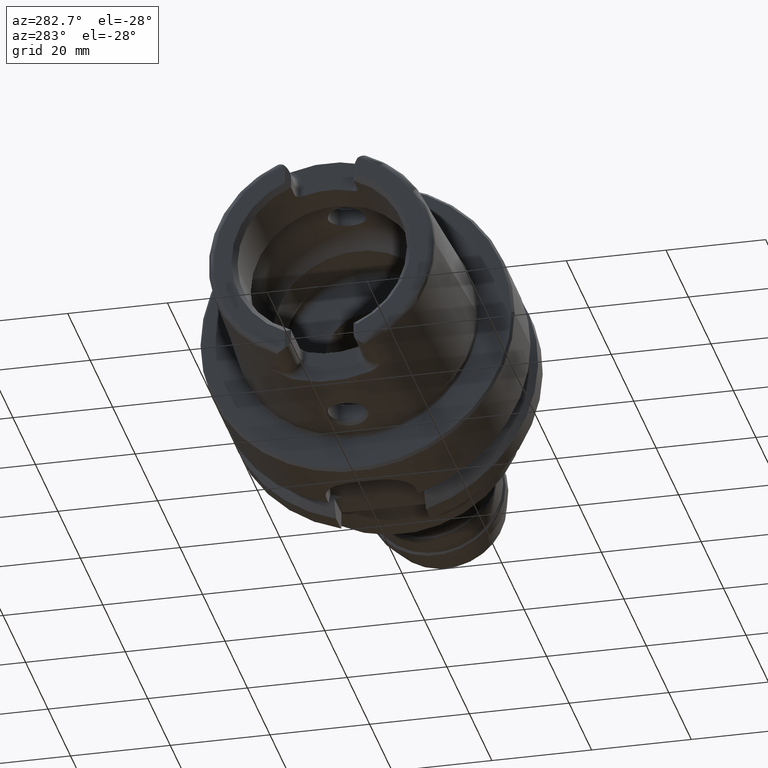
[diagram: clean part render]
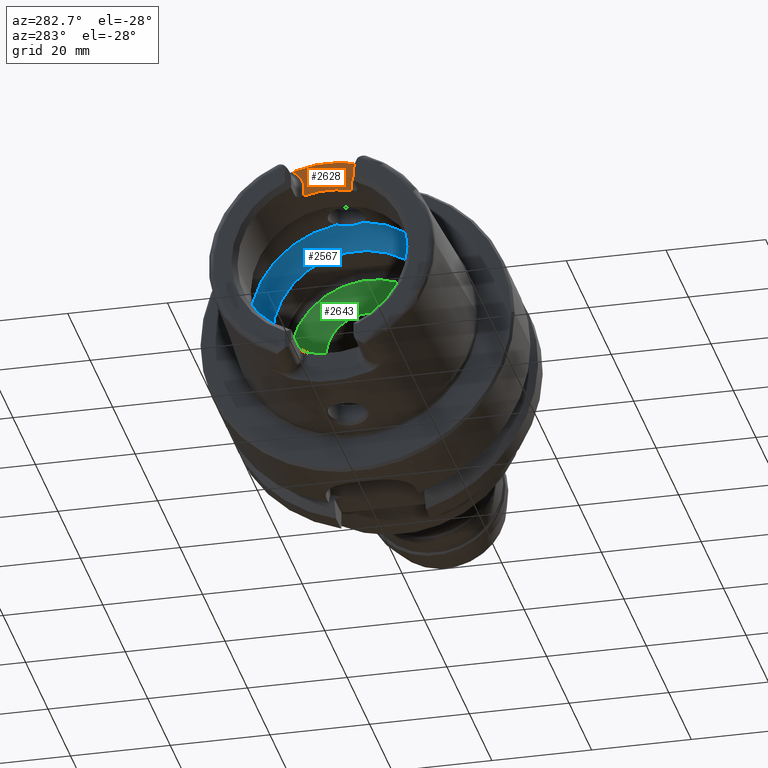
[diagram: same view with three faces highlighted in distinct colors, each labeled with its STEP entity id]
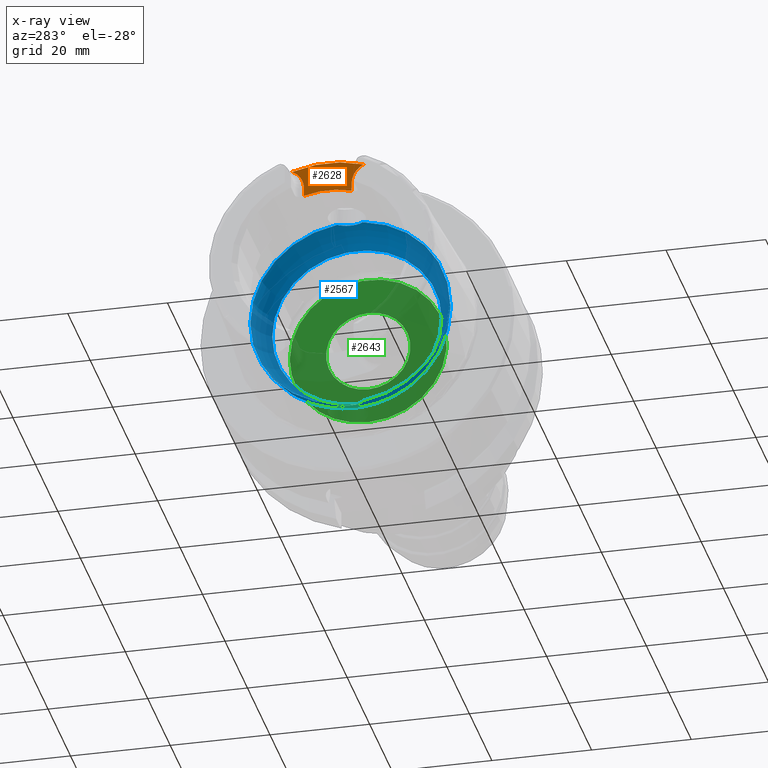
[diagram: x-ray of the same camera — body ghosted, the three highlighted faces saturated]
A machine part, auxiliary view with three faces highlighted in distinct colors.
The next image is the same camera in x-ray (body ghosted, the three faces saturated) — at least one of them is partly hidden behind the body in this view.
Their STEP definitions:

[orange] entity #2628 — the highlighted planar face has unit normal (-1, 0, 0).
#144=PLANE('',#2967);
#284=LINE('',#5339,#399);
#285=LINE('',#5368,#400);
#399=VECTOR('',#3664,10.);
#400=VECTOR('',#3677,10.);
#547=FACE_OUTER_BOUND('',#689,.T.);
#689=EDGE_LOOP('',(#2330,#2331,#2332,#2333,#2334,#2335));
#837=CIRCLE('',#2843,23.0180260521042);
#884=CIRCLE('',#2940,4.38);
#886=CIRCLE('',#2943,4.38);
#898=CIRCLE('',#2968,17.);
#1087=VERTEX_POINT('',#4524);
#1088=VERTEX_POINT('',#4539);
#1185=VERTEX_POINT('',#5336);
#1186=VERTEX_POINT('',#5338);
#1187=VERTEX_POINT('',#5353);
#1188=VERTEX_POINT('',#5357);
#1419=EDGE_CURVE('',#1087,#1088,#837,.T.);
#1569=EDGE_CURVE('',#1185,#1186,#284,.T.);
#1571=EDGE_CURVE('',#1088,#1185,#884,.T.);
#1573=EDGE_CURVE('',#1187,#1087,#886,.T.);
#1575=EDGE_CURVE('',#1188,#1187,#285,.T.);
#1596=EDGE_CURVE('',#1186,#1188,#898,.T.);
#2330=ORIENTED_EDGE('',*,*,#1571,.F.);
#2331=ORIENTED_EDGE('',*,*,#1419,.F.);
#2332=ORIENTED_EDGE('',*,*,#1573,.F.);
#2333=ORIENTED_EDGE('',*,*,#1575,.F.);
#2334=ORIENTED_EDGE('',*,*,#1596,.F.);
#2335=ORIENTED_EDGE('',*,*,#1569,.F.);
#2628=ADVANCED_FACE('',(#547),#144,.T.);
#2843=AXIS2_PLACEMENT_3D('',#4540,#3419,#3420);
#2940=AXIS2_PLACEMENT_3D('',#5351,#3667,#3668);
#2943=AXIS2_PLACEMENT_3D('',#5355,#3673,#3674);
#2967=AXIS2_PLACEMENT_3D('',#5426,#3729,#3730);
#2968=AXIS2_PLACEMENT_3D('',#5427,#3731,#3732);
#3419=DIRECTION('center_axis',(1.,0.,0.));
#3420=DIRECTION('ref_axis',(0.,1.,0.));
#3664=DIRECTION('',(0.,-1.58830189502884E-16,-1.));
#3667=DIRECTION('center_axis',(-1.,0.,0.));
#3668=DIRECTION('ref_axis',(0.,0.601141749549969,0.799142413433302));
#3673=DIRECTION('center_axis',(-1.,0.,0.));
#3674=DIRECTION('ref_axis',(0.,-0.601141749549969,0.799142413433301));
#3677=DIRECTION('',(0.,-1.58830189502884E-16,1.));
#3729=DIRECTION('center_axis',(-1.,0.,0.));
#3730=DIRECTION('ref_axis',(0.,0.,1.));
#3731=DIRECTION('center_axis',(-1.,0.,0.));
#3732=DIRECTION('ref_axis',(0.,1.,0.));
#4524=CARTESIAN_POINT('',(-26.,7.14127219004964,21.8822246319466));
#4539=CARTESIAN_POINT('',(-26.,-7.14127219004964,21.8822246319466));
#4540=CARTESIAN_POINT('Origin',(-26.,0.,0.));
#5336=CARTESIAN_POINT('',(-26.,-4.77,17.99));
#5338=CARTESIAN_POINT('',(-26.,-4.77,16.3170800083839));
#5339=CARTESIAN_POINT('',(-26.,-4.77,14.75));
#5351=CARTESIAN_POINT('Origin',(-26.,-9.15,17.99));
#5353=CARTESIAN_POINT('',(-26.,4.77,17.99));
#5355=CARTESIAN_POINT('Origin',(-26.,9.15,17.99));
#5357=CARTESIAN_POINT('',(-26.,4.77,16.3170800083839));
#5368=CARTESIAN_POINT('',(-26.,4.77,18.245));
#5426=CARTESIAN_POINT('Origin',(-26.,-2.22044604925031E-15,18.5));
#5427=CARTESIAN_POINT('Origin',(-26.,0.,0.));

[blue] entity #2567 — the highlighted toroidal blend (fillet) surface has major radius 12 mm and minor (blend) radius 8 mm.
#34=B_SPLINE_CURVE_WITH_KNOTS('',3,(#4584,#4585,#4586,#4587,#4588,#4589,
#4590,#4591,#4592,#4593,#4594,#4595),.UNSPECIFIED.,.F.,.F.,(4,2,2,2,2,4),
(-0.576707489927137,-0.455716402860932,-0.365368737325079,-0.320549741072141,
-0.288976283252758,-0.288398128098713),.UNSPECIFIED.);
#36=B_SPLINE_CURVE_WITH_KNOTS('',3,(#4628,#4629,#4630,#4631,#4632,#4633,
#4634,#4635,#4636,#4637),.UNSPECIFIED.,.F.,.F.,(4,2,2,2,4),(-0.288398128098713,
-0.257600392372138,-0.213718373510558,-0.137948403428905,0.),
 .UNSPECIFIED.);
#40=B_SPLINE_CURVE_WITH_KNOTS('',3,(#4785,#4786,#4787,#4788,#4789,#4790,
#4791,#4792,#4793,#4794),.UNSPECIFIED.,.F.,.F.,(4,2,2,2,4),(-0.288398128098684,
-0.257600392372121,-0.213718373510554,-0.137948403428902,0.),
 .UNSPECIFIED.);
#41=B_SPLINE_CURVE_WITH_KNOTS('',3,(#4798,#4799,#4800,#4801,#4802,#4803,
#4804,#4805,#4806,#4807,#4808,#4809),.UNSPECIFIED.,.F.,.F.,(4,2,2,2,2,4),
(-0.57670748992712,-0.455716402860916,-0.365368737325059,-0.320549741072118,
-0.288976283252731,-0.288398128098684),.UNSPECIFIED.);
#486=FACE_OUTER_BOUND('',#627,.T.);
#627=EDGE_LOOP('',(#2000,#2001,#2002,#2003,#2004,#2005,#2006,#2007,#2008,
#2009,#2010,#2011));
#839=CIRCLE('',#2848,17.);
#840=CIRCLE('',#2849,17.);
#841=CIRCLE('',#2850,17.);
#842=CIRCLE('',#2851,8.);
#843=CIRCLE('',#2852,20.);
#844=CIRCLE('',#2853,20.);
#845=CIRCLE('',#2854,20.);
#1091=VERTEX_POINT('',#4581);
#1092=VERTEX_POINT('',#4583);
#1093=VERTEX_POINT('',#4596);
#1096=VERTEX_POINT('',#4751);
#1097=VERTEX_POINT('',#4752);
#1098=VERTEX_POINT('',#4784);
#1100=VERTEX_POINT('',#4811);
#1101=VERTEX_POINT('',#4812);
#1102=VERTEX_POINT('',#4814);
#1103=VERTEX_POINT('',#4818);
#1425=EDGE_CURVE('',#1092,#1091,#34,.T.);
#1427=EDGE_CURVE('',#1091,#1093,#36,.T.);
#1432=EDGE_CURVE('',#1098,#1096,#40,.T.);
#1435=EDGE_CURVE('',#1097,#1098,#41,.T.);
#1436=EDGE_CURVE('',#1100,#1101,#839,.T.);
#1437=EDGE_CURVE('',#1102,#1100,#840,.T.);
#1438=EDGE_CURVE('',#1101,#1102,#841,.T.);
#1439=EDGE_CURVE('',#1101,#1091,#842,.T.);
#1440=EDGE_CURVE('',#1093,#1103,#843,.T.);
#1441=EDGE_CURVE('',#1103,#1097,#844,.T.);
#1442=EDGE_CURVE('',#1096,#1092,#845,.T.);
#2000=ORIENTED_EDGE('',*,*,#1436,.F.);
#2001=ORIENTED_EDGE('',*,*,#1437,.F.);
#2002=ORIENTED_EDGE('',*,*,#1438,.F.);
#2003=ORIENTED_EDGE('',*,*,#1439,.T.);
#2004=ORIENTED_EDGE('',*,*,#1427,.T.);
#2005=ORIENTED_EDGE('',*,*,#1440,.T.);
#2006=ORIENTED_EDGE('',*,*,#1441,.T.);
#2007=ORIENTED_EDGE('',*,*,#1435,.T.);
#2008=ORIENTED_EDGE('',*,*,#1432,.T.);
#2009=ORIENTED_EDGE('',*,*,#1442,.T.);
#2010=ORIENTED_EDGE('',*,*,#1425,.T.);
#2011=ORIENTED_EDGE('',*,*,#1439,.F.);
#2496=TOROIDAL_SURFACE('',#2847,12.,8.);
#2567=ADVANCED_FACE('',(#486),#2496,.F.);
#2847=AXIS2_PLACEMENT_3D('',#4810,#3432,#3433);
#2848=AXIS2_PLACEMENT_3D('',#4813,#3434,#3435);
#2849=AXIS2_PLACEMENT_3D('',#4815,#3436,#3437);
#2850=AXIS2_PLACEMENT_3D('',#4816,#3438,#3439);
#2851=AXIS2_PLACEMENT_3D('',#4817,#3440,#3441);
#2852=AXIS2_PLACEMENT_3D('',#4819,#3442,#3443);
#2853=AXIS2_PLACEMENT_3D('',#4820,#3444,#3445);
#2854=AXIS2_PLACEMENT_3D('',#4821,#3446,#3447);
#3432=DIRECTION('center_axis',(-1.,0.,0.));
#3433=DIRECTION('ref_axis',(0.,0.,1.));
#3434=DIRECTION('center_axis',(-1.,0.,0.));
#3435=DIRECTION('ref_axis',(0.,0.,1.));
#3436=DIRECTION('center_axis',(-1.,0.,0.));
#3437=DIRECTION('ref_axis',(0.,0.,1.));
#3438=DIRECTION('center_axis',(-1.,0.,0.));
#3439=DIRECTION('ref_axis',(0.,0.,1.));
#3440=DIRECTION('center_axis',(0.,1.,-1.22464679914735E-16));
#3441=DIRECTION('ref_axis',(0.,-1.22464679914735E-16,-1.));
#3442=DIRECTION('center_axis',(-1.,0.,0.));
#3443=DIRECTION('ref_axis',(0.,0.,1.));
#3444=DIRECTION('center_axis',(-1.,0.,0.));
#3445=DIRECTION('ref_axis',(0.,0.,1.));
#3446=DIRECTION('center_axis',(-1.,0.,0.));
#3447=DIRECTION('ref_axis',(0.,0.,1.));
#4581=CARTESIAN_POINT('',(-5.25,-3.2549023747245E-16,-19.9307944116589));
#4583=CARTESIAN_POINT('',(-6.3,2.60240273593461,-19.8299646999182));
#4584=CARTESIAN_POINT('Ctrl Pts',(-6.3,2.60240273593462,-19.8299646999182));
#4585=CARTESIAN_POINT('Ctrl Pts',(-6.02135700807983,2.31330986502881,-19.8679040553113));
#4586=CARTESIAN_POINT('Ctrl Pts',(-5.79033009489734,1.98064918550538,-19.890591169119));
#4587=CARTESIAN_POINT('Ctrl Pts',(-5.4867559347239,1.34543685595402,-19.9160762142355));
#4588=CARTESIAN_POINT('Ctrl Pts',(-5.39007954405641,1.05909527261747,-19.9223713998338));
#4589=CARTESIAN_POINT('Ctrl Pts',(-5.29825184053117,0.617966692523932,-19.9280498303184));
#4590=CARTESIAN_POINT('Ctrl Pts',(-5.27657003878054,0.469994704559193,-19.9292919985393));
#4591=CARTESIAN_POINT('Ctrl Pts',(-5.25476109400056,0.216252544174992,-19.9305312191434));
#4592=CARTESIAN_POINT('Ctrl Pts',(-5.25016676806113,0.111043433894874,-19.9307851133249));
#4593=CARTESIAN_POINT('Ctrl Pts',(-5.25000148602981,0.00385492015310348,
-19.9307943288045));
#4594=CARTESIAN_POINT('Ctrl Pts',(-5.25,0.00192745284672582,-19.9307944116589));
#4595=CARTESIAN_POINT('Ctrl Pts',(-5.25,-1.11353179044883E-15,-19.9307944116589));
#4596=CARTESIAN_POINT('',(-6.3,-2.60240273593461,-19.8299646999182));
#4628=CARTESIAN_POINT('Ctrl Pts',(-5.25,-1.07552855510562E-15,-19.9307944116589));
#4629=CARTESIAN_POINT('Ctrl Pts',(-5.25,-0.102673448439582,-19.9307944116589));
#4630=CARTESIAN_POINT('Ctrl Pts',(-5.25421684930312,-0.205305866402777,
-19.9305613545514));
#4631=CARTESIAN_POINT('Ctrl Pts',(-5.27464110625334,-0.453434827119529,
-19.9294026077432));
#4632=CARTESIAN_POINT('Ctrl Pts',(-5.29516467443998,-0.598409706843613,
-19.9282296486912));
#4633=CARTESIAN_POINT('Ctrl Pts',(-5.37406649070666,-0.989396372030694,
-19.9233785291009));
#4634=CARTESIAN_POINT('Ctrl Pts',(-5.44891810120347,-1.23128278857668,-19.9185486409462));
#4635=CARTESIAN_POINT('Ctrl Pts',(-5.72687568605109,-1.88691112132017,-19.8966847278005));
#4636=CARTESIAN_POINT('Ctrl Pts',(-5.98230637151864,-2.2727947221344,-19.8732210954731));
#4637=CARTESIAN_POINT('Ctrl Pts',(-6.3,-2.60240273593462,-19.8299646999182));
#4751=CARTESIAN_POINT('',(-6.3,2.60240273593461,19.8299646999182));
#4752=CARTESIAN_POINT('',(-6.3,-2.60240273593461,19.8299646999182));
#4784=CARTESIAN_POINT('',(-5.25,1.38321238636471E-15,19.9307944116589));
#4785=CARTESIAN_POINT('Ctrl Pts',(-5.25,2.37657116208823E-15,19.9307944116589));
#4786=CARTESIAN_POINT('Ctrl Pts',(-5.25,0.102673448439501,19.9307944116589));
#4787=CARTESIAN_POINT('Ctrl Pts',(-5.25421684930311,0.205305866402731,19.9305613545513));
#4788=CARTESIAN_POINT('Ctrl Pts',(-5.27464110625334,0.453434827119582,19.9294026077432));
#4789=CARTESIAN_POINT('Ctrl Pts',(-5.29516467443998,0.598409706843629,19.9282296486912));
#4790=CARTESIAN_POINT('Ctrl Pts',(-5.37406649070666,0.989396372030681,19.9233785291009));
#4791=CARTESIAN_POINT('Ctrl Pts',(-5.44891810120347,1.23128278857668,19.9185486409462));
#4792=CARTESIAN_POINT('Ctrl Pts',(-5.72687568605109,1.88691112132019,19.8966847278005));
#4793=CARTESIAN_POINT('Ctrl Pts',(-5.98230637151865,2.27279472213441,19.8732210954731));
#4794=CARTESIAN_POINT('Ctrl Pts',(-6.3,2.60240273593462,19.8299646999182));
#4798=CARTESIAN_POINT('Ctrl Pts',(-6.3,-2.60240273593462,19.8299646999182));
#4799=CARTESIAN_POINT('Ctrl Pts',(-6.02135700807986,-2.31330986502885,19.8679040553113));
#4800=CARTESIAN_POINT('Ctrl Pts',(-5.79033009489739,-1.98064918550548,19.890591169119));
#4801=CARTESIAN_POINT('Ctrl Pts',(-5.48675593472391,-1.34543685595408,19.9160762142355));
#4802=CARTESIAN_POINT('Ctrl Pts',(-5.39007954405642,-1.0590952726175,19.9223713998338));
#4803=CARTESIAN_POINT('Ctrl Pts',(-5.29825184053117,-0.617966692523971,
19.9280498303184));
#4804=CARTESIAN_POINT('Ctrl Pts',(-5.27657003878054,-0.469994704559232,
19.9292919985393));
#4805=CARTESIAN_POINT('Ctrl Pts',(-5.25476109400056,-0.216252544174991,
19.9305312191434));
#4806=CARTESIAN_POINT('Ctrl Pts',(-5.25016676806113,-0.111043433894851,
19.9307851133249));
#4807=CARTESIAN_POINT('Ctrl Pts',(-5.2500014860298,-0.0038549201531106,
19.9307943288045));
#4808=CARTESIAN_POINT('Ctrl Pts',(-5.25,-0.0019274528467288,19.9307944116589));
#4809=CARTESIAN_POINT('Ctrl Pts',(-5.25,2.32512304966539E-15,19.9307944116589));
#4810=CARTESIAN_POINT('Origin',(-6.3,0.,0.));
#4811=CARTESIAN_POINT('',(-0.055002001601602,17.,0.));
#4812=CARTESIAN_POINT('',(-0.0550020016016017,-2.0818995585505E-15,-17.));
#4813=CARTESIAN_POINT('Origin',(-0.055002001601602,0.,0.));
#4814=CARTESIAN_POINT('',(-0.0550020016016017,-17.,2.0818995585505E-15));
#4815=CARTESIAN_POINT('Origin',(-0.055002001601602,0.,0.));
#4816=CARTESIAN_POINT('Origin',(-0.055002001601602,0.,0.));
#4817=CARTESIAN_POINT('Origin',(-6.3,-1.46957615897682E-15,-12.));
#4818=CARTESIAN_POINT('',(-6.3,-20.,2.44929359829471E-15));
#4819=CARTESIAN_POINT('Origin',(-6.3,0.,0.));
#4820=CARTESIAN_POINT('Origin',(-6.3,0.,0.));
#4821=CARTESIAN_POINT('Origin',(-6.3,0.,0.));

[green] entity #2643 — the highlighted planar face has unit normal (1, 0, 0).
#106=FACE_BOUND('',#706,.T.);
#148=PLANE('',#3006);
#562=FACE_OUTER_BOUND('',#705,.T.);
#705=EDGE_LOOP('',(#2434,#2435));
#706=EDGE_LOOP('',(#2436,#2437));
#905=CIRCLE('',#2983,8.458734);
#906=CIRCLE('',#2984,8.458734);
#922=CIRCLE('',#3007,15.75);
#923=CIRCLE('',#3008,15.75);
#1200=VERTEX_POINT('',#5459);
#1201=VERTEX_POINT('',#5460);
#1215=VERTEX_POINT('',#5502);
#1216=VERTEX_POINT('',#5503);
#1606=EDGE_CURVE('',#1200,#1201,#905,.T.);
#1607=EDGE_CURVE('',#1201,#1200,#906,.T.);
#1627=EDGE_CURVE('',#1215,#1216,#922,.T.);
#1628=EDGE_CURVE('',#1216,#1215,#923,.T.);
#2434=ORIENTED_EDGE('',*,*,#1627,.T.);
#2435=ORIENTED_EDGE('',*,*,#1628,.T.);
#2436=ORIENTED_EDGE('',*,*,#1606,.T.);
#2437=ORIENTED_EDGE('',*,*,#1607,.T.);
#2643=ADVANCED_FACE('',(#562,#106),#148,.F.);
#2983=AXIS2_PLACEMENT_3D('',#5461,#3763,#3764);
#2984=AXIS2_PLACEMENT_3D('',#5462,#3765,#3766);
#3006=AXIS2_PLACEMENT_3D('',#5501,#3813,#3814);
#3007=AXIS2_PLACEMENT_3D('',#5504,#3815,#3816);
#3008=AXIS2_PLACEMENT_3D('',#5505,#3817,#3818);
#3763=DIRECTION('center_axis',(1.,0.,0.));
#3764=DIRECTION('ref_axis',(0.,0.,1.));
#3765=DIRECTION('center_axis',(1.,0.,0.));
#3766=DIRECTION('ref_axis',(0.,0.,1.));
#3813=DIRECTION('center_axis',(1.,0.,0.));
#3814=DIRECTION('ref_axis',(0.,0.,-1.));
#3815=DIRECTION('center_axis',(-1.,0.,0.));
#3816=DIRECTION('ref_axis',(0.,0.,1.));
#3817=DIRECTION('center_axis',(-1.,0.,0.));
#3818=DIRECTION('ref_axis',(0.,0.,1.));
#5459=CARTESIAN_POINT('',(10.,0.,8.458734));
#5460=CARTESIAN_POINT('',(10.,-1.03589615179389E-15,-8.458734));
#5461=CARTESIAN_POINT('Origin',(10.,0.,0.));
#5462=CARTESIAN_POINT('Origin',(10.,0.,0.));
#5501=CARTESIAN_POINT('Origin',(10.,15.75,0.));
#5502=CARTESIAN_POINT('',(10.,15.75,0.));
#5503=CARTESIAN_POINT('',(10.,-1.92881870865708E-15,-15.75));
#5504=CARTESIAN_POINT('Origin',(10.,0.,0.));
#5505=CARTESIAN_POINT('Origin',(10.,0.,0.));